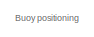
[diagram: root canvas - part 1/7, top left region]
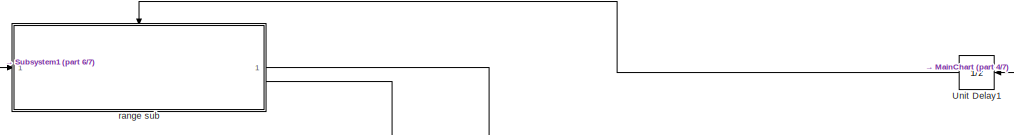
[diagram: root canvas - part 2/7, top left region]
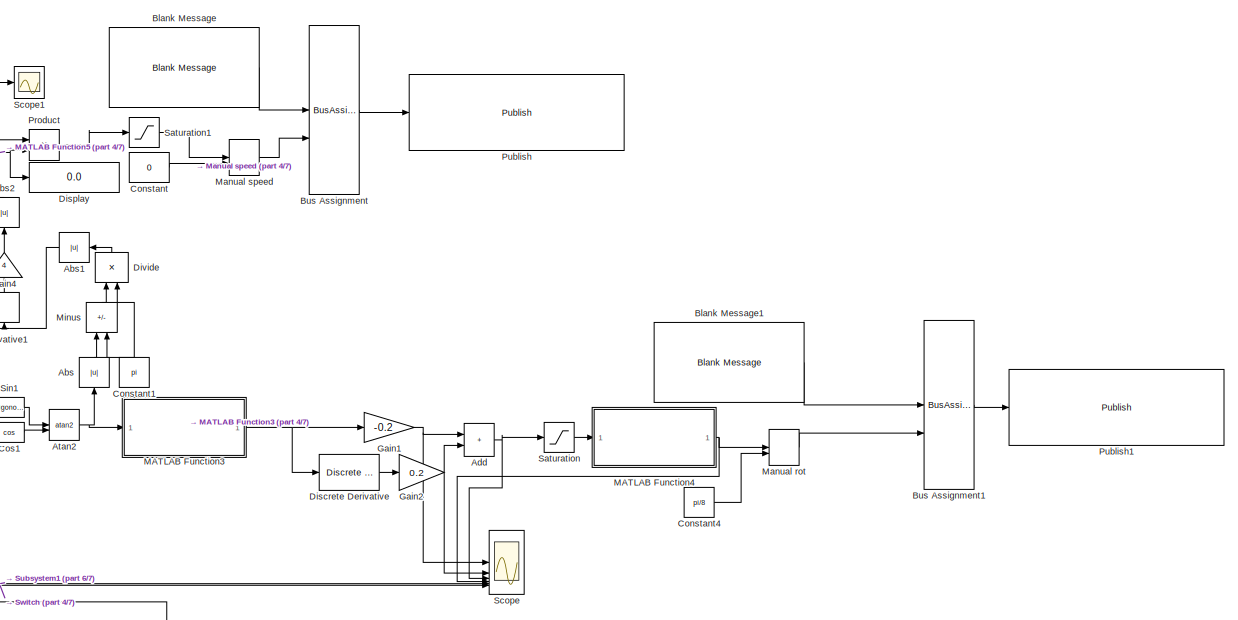
[diagram: root canvas - part 3/7, middle right region]
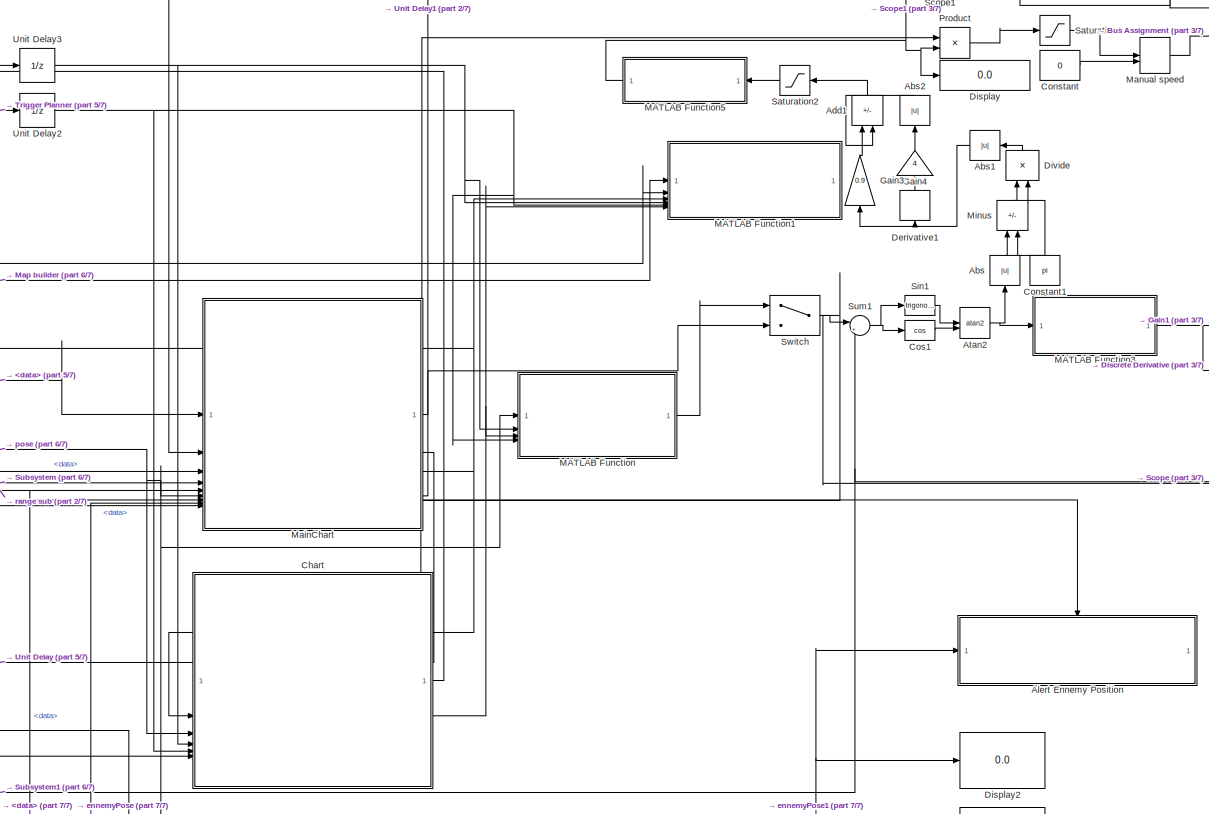
[diagram: root canvas - part 4/7, central region]
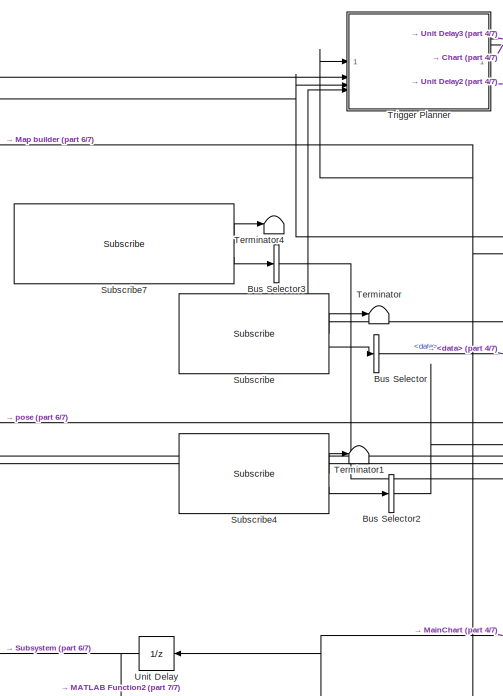
[diagram: root canvas - part 5/7, central region]
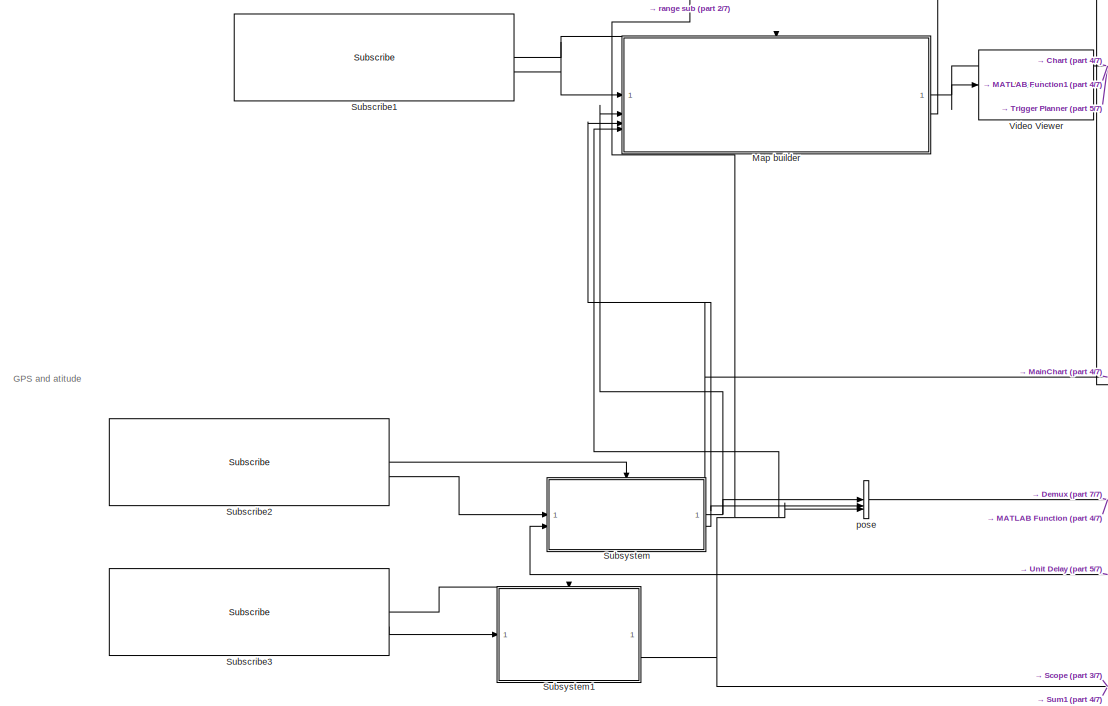
[diagram: root canvas - part 6/7, middle left region]
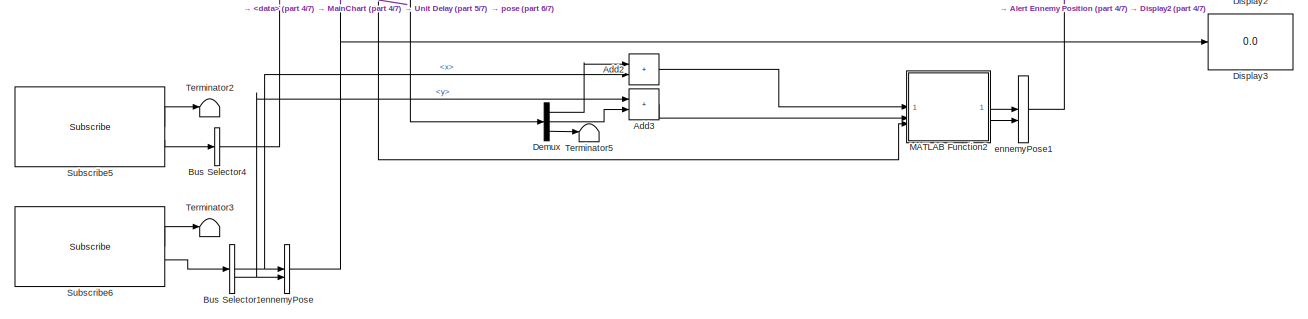
[diagram: root canvas - part 7/7, bottom center region]
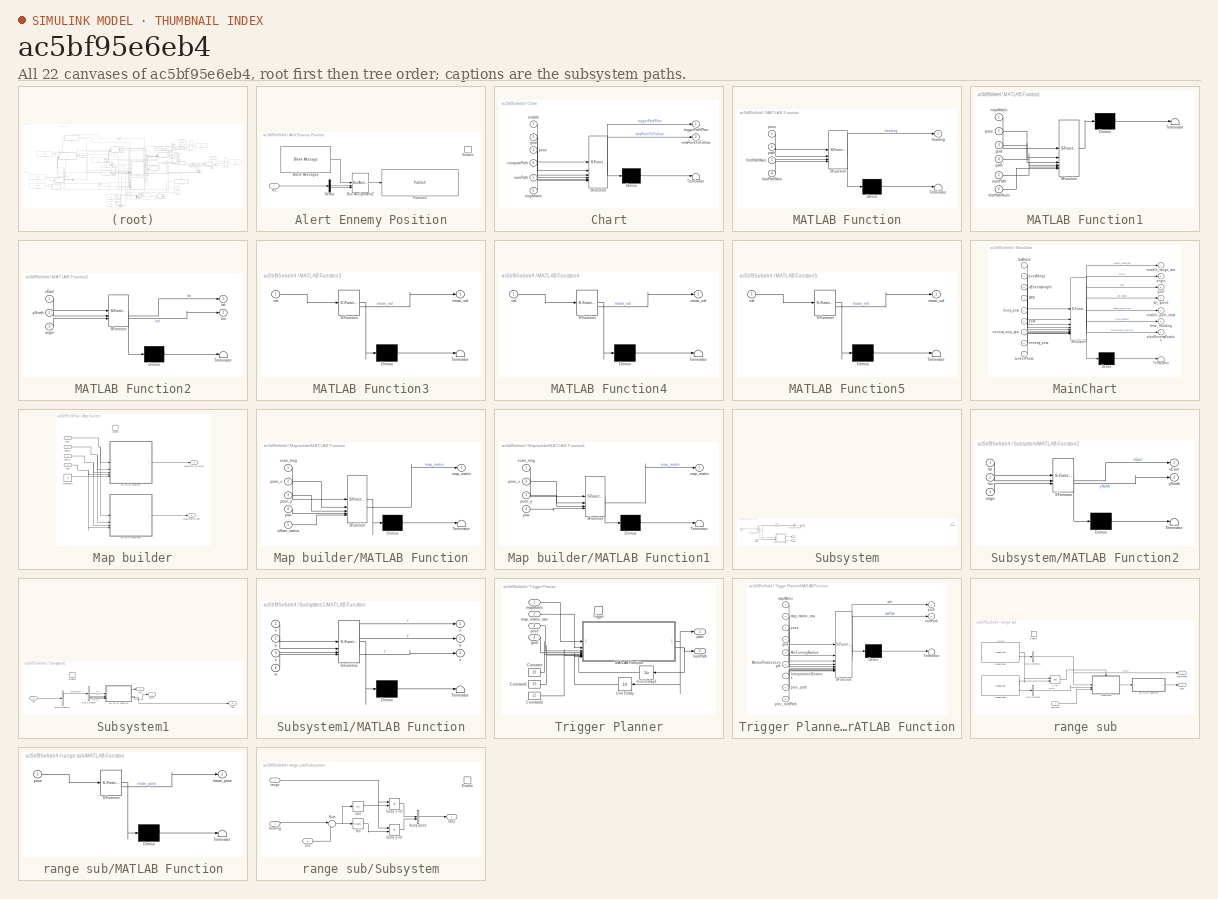
[diagram: thumbnail index - all 22 canvases of the model, root first then tree order]
MODEL slx_ac5bf95e6eb4
KIND model
CONFIG AbsTol = auto
CONFIG EnableMultiTasking = off
CONFIG FixedStep = auto
CONFIG MaxStep = auto
CONFIG MinStep = auto
CONFIG RelTol = 1e-3
CONFIG SampleTimeConstraint = Unconstrained
CONFIG SolverName = FixedStepAuto
CONFIG StartTime = 0.0
CONFIG StopTime = Inf
WORKSPACE source: mxarray member
WORKSPACE SL_Bus_ROSEnable64bitIntegers = 1
WORKSPACE SL_ROS_VariableLengthArrays_MaxSizes: object (value not decoded)
BLOCK [Abs] Abs
  NameLocation = right
  SaturateOnIntegerOverflow = off
BLOCK [Abs] Abs1
  NameLocation = top
  SaturateOnIntegerOverflow = off
BLOCK [Abs] Abs2
  NameLocation = right
  SaturateOnIntegerOverflow = off
BLOCK [Sum] Add
  IconShape = rectangular
BLOCK [Sum] Add1
  IconShape = rectangular
  Inputs = +-
  NameLocation = right
BLOCK [Sum] Add2
  IconShape = rectangular
BLOCK [Sum] Add3
  IconShape = rectangular
BLOCK [SubSystem] Alert Ennemy Position
BLOCK [Reference] Alert Ennemy Position/Blank Message2  REF=ros2lib/Blank Message  (lib defined in slx_3c1549211f48)
  SourceBlock = ros2lib/Blank Message
  SourceType = ROS2 Blank Message
BLOCK [BusAssignment] Alert Ennemy Position/Bus Assignment2
  AssignedSignals = pose.position.x,pose.position.y
BLOCK [Demux] Alert Ennemy Position/Demux
  Outputs = 2
BLOCK [EnablePort] Alert Ennemy Position/Enable
BLOCK [Inport] Alert Ennemy Position/In1
BLOCK [Reference] Alert Ennemy Position/Publish2  REF=ros2lib/Publish  (lib defined in slx_3c1549211f48)
  SourceBlock = ros2lib/Publish
  SourceType = ROS2 Publish
BLOCK [Trigonometry] Atan2
  Operator = atan2
BLOCK [Reference] Blank Message  REF=ros2lib/Blank Message  (lib defined in slx_3c1549211f48)
  SourceBlock = ros2lib/Blank Message
  SourceType = ROS2 Blank Message
BLOCK [Reference] Blank Message1  REF=ros2lib/Blank Message  (lib defined in slx_3c1549211f48)
  SourceBlock = ros2lib/Blank Message
  SourceType = ROS2 Blank Message
BLOCK [BusAssignment] Bus Assignment
  AssignedSignals = data
BLOCK [BusAssignment] Bus Assignment1
  AssignedSignals = data
BLOCK [BusSelector] Bus Selector
  OutputSignals = data
BLOCK [BusSelector] Bus Selector1
  OutputSignals = pose.position.x,pose.position.y
BLOCK [BusSelector] Bus Selector2
  OutputSignals = data
BLOCK [BusSelector] Bus Selector3
  OutputSignals = data
BLOCK [BusSelector] Bus Selector4
  OutputSignals = data
BLOCK [SubSystem] Chart
  ErrorFcn = Stateflow.Translate.translate
  PermitHierarchicalResolution = ExplicitOnly
  PortSchema = {"entries":[{"content":{"sides":[{"content":{"connectorIds":["In2","In3","In4","In5","In6"]},"type":"ConnectorPlacement.EquallySpacedRectSide","uuid":"f9d23542-f88c-4b93-885e-55d9e7a867a5"},{"content":{"connectorIds":["Out1","Out2"],"side":"RIGHT"},"type":"ConnectorPlacement.EquallySpacedRectSide","uuid":"ec7f353a-44e5-4b1c-b599-993baee30662"},{"content":{"connectorIds":["In1"],"side":"TOP"},"type...<+276ch>
  SFBlockType = Chart
  TreatAsAtomicUnit = on
BLOCK [Demux] Chart/ Demux 
  Outputs = 1
BLOCK [S-Function] Chart/ SFunction 
  EnableBusSupport = on
  FunctionName = sf_sfun
  PortCounts = [6 3]
  SFcnIsStateOwnerBlock = off
  SFunctionDeploymentMode = off
  Tag = Stateflow S-Function 12
BLOCK [Terminator] Chart/ Terminator 
BLOCK [Inport] Chart/computePath
  Port = 4
BLOCK [Inport] Chart/enable
BLOCK [Inport] Chart/goal
  Port = 2
BLOCK [Inport] Chart/mapMatrix
  Port = 6
BLOCK [Outport] Chart/newPointToFollow
  Port = 2
BLOCK [Inport] Chart/numPath
  Port = 5
BLOCK [Inport] Chart/pose
  Port = 3
BLOCK [Outport] Chart/triggerPathPlan
BLOCK [Constant] Constant
  Value = 0
BLOCK [Constant] Constant1
  NameLocation = right
  Value = pi
BLOCK [Constant] Constant4
  Value = pi/8
BLOCK [Trigonometry] Cos1
  Operator = cos
BLOCK [Demux] Demux
  Outputs = 3
BLOCK [Derivative] Derivative1
  NameLocation = right
BLOCK [Reference] Discrete Derivative  REF=simulink/Discrete/Discrete Derivative
  SourceBlock = simulink/Discrete/Discrete Derivative
  SourceType = Discrete Derivative
BLOCK [Display] Display
  Decimation = 1
BLOCK [Display] Display2
  Decimation = 1
BLOCK [Display] Display3
  Decimation = 1
BLOCK [Product] Divide
  Inputs = */
  NameLocation = right
  RndMeth = Zero
  SaturateOnIntegerOverflow = on
BLOCK [Gain] Gain1
  Gain = -0.2
BLOCK [Gain] Gain2
  Gain = 0.2
BLOCK [Gain] Gain3
  Gain = 0.9
  NameLocation = right
BLOCK [Gain] Gain4
  Gain = 4
  NameLocation = right
BLOCK [SubSystem] MATLAB Function
  ErrorFcn = Stateflow.Translate.translate
  PermitHierarchicalResolution = ExplicitOnly
  SFBlockType = MATLAB Function
  TreatAsAtomicUnit = on
BLOCK [Demux] MATLAB Function/ Demux 
  Outputs = 1
BLOCK [S-Function] MATLAB Function/ SFunction 
  EnableBusSupport = on
  FunctionName = sf_sfun
  PortCounts = [4 2]
  SFcnIsStateOwnerBlock = off
  SFunctionDeploymentMode = off
  Tag = Stateflow S-Function 9
BLOCK [Terminator] MATLAB Function/ Terminator 
BLOCK [Inport] MATLAB Function/firstPathNum
  Port = 3
BLOCK [Outport] MATLAB Function/heading
BLOCK [Inport] MATLAB Function/lastPathNum
  Port = 4
BLOCK [Inport] MATLAB Function/path
  Port = 2
BLOCK [Inport] MATLAB Function/pose
BLOCK [SubSystem] MATLAB Function1
  Commented = on
  ErrorFcn = Stateflow.Translate.translate
  PermitHierarchicalResolution = ExplicitOnly
  SFBlockType = MATLAB Function
  TreatAsAtomicUnit = on
BLOCK [Demux] MATLAB Function1/ Demux 
  Outputs = 1
BLOCK [S-Function] MATLAB Function1/ SFunction 
  EnableBusSupport = on
  FunctionName = sf_sfun
  PortCounts = [6 1]
  SFcnIsStateOwnerBlock = off
  SFunctionDeploymentMode = off
  Tag = Stateflow S-Function 7
BLOCK [Terminator] MATLAB Function1/ Terminator 
BLOCK [Inport] MATLAB Function1/firstPathNum
  Port = 6
BLOCK [Inport] MATLAB Function1/goal
  Port = 3
BLOCK [Inport] MATLAB Function1/mapMatrix
BLOCK [Inport] MATLAB Function1/numPath
  Port = 5
BLOCK [Inport] MATLAB Function1/path
  Port = 4
BLOCK [Inport] MATLAB Function1/pose
  Port = 2
BLOCK [SubSystem] MATLAB Function2
  ErrorFcn = Stateflow.Translate.translate
  PermitHierarchicalResolution = ExplicitOnly
  SFBlockType = MATLAB Function
  TreatAsAtomicUnit = on
BLOCK [Demux] MATLAB Function2/ Demux 
  Outputs = 1
BLOCK [S-Function] MATLAB Function2/ SFunction 
  EnableBusSupport = on
  FunctionName = sf_sfun
  PortCounts = [3 3]
  SFcnIsStateOwnerBlock = off
  SFunctionDeploymentMode = off
  Tag = Stateflow S-Function 4
BLOCK [Terminator] MATLAB Function2/ Terminator 
BLOCK [Outport] MATLAB Function2/lat
BLOCK [Outport] MATLAB Function2/lon
  Port = 2
BLOCK [Inport] MATLAB Function2/origin
  Port = 3
BLOCK [Inport] MATLAB Function2/xEast
BLOCK [Inport] MATLAB Function2/yNorth
  Port = 2
BLOCK [SubSystem] MATLAB Function3
  ErrorFcn = Stateflow.Translate.translate
  PermitHierarchicalResolution = ExplicitOnly
  SFBlockType = MATLAB Function
  TreatAsAtomicUnit = on
BLOCK [Demux] MATLAB Function3/ Demux 
  Outputs = 1
BLOCK [S-Function] MATLAB Function3/ SFunction 
  EnableBusSupport = on
  FunctionName = sf_sfun
  PortCounts = [1 2]
  SFcnIsStateOwnerBlock = off
  SFunctionDeploymentMode = off
  Tag = Stateflow S-Function 5
BLOCK [Terminator] MATLAB Function3/ Terminator 
BLOCK [Outport] MATLAB Function3/mean_val
BLOCK [Inport] MATLAB Function3/val
BLOCK [SubSystem] MATLAB Function4
  ErrorFcn = Stateflow.Translate.translate
  PermitHierarchicalResolution = ExplicitOnly
  SFBlockType = MATLAB Function
  TreatAsAtomicUnit = on
BLOCK [Demux] MATLAB Function4/ Demux 
  Outputs = 1
BLOCK [S-Function] MATLAB Function4/ SFunction 
  EnableBusSupport = on
  FunctionName = sf_sfun
  PortCounts = [1 2]
  SFcnIsStateOwnerBlock = off
  SFunctionDeploymentMode = off
  Tag = Stateflow S-Function 10
BLOCK [Terminator] MATLAB Function4/ Terminator 
BLOCK [Outport] MATLAB Function4/mean_val
BLOCK [Inport] MATLAB Function4/val
BLOCK [SubSystem] MATLAB Function5
  ErrorFcn = Stateflow.Translate.translate
  NameLocation = top
  PermitHierarchicalResolution = ExplicitOnly
  SFBlockType = MATLAB Function
  TreatAsAtomicUnit = on
BLOCK [Demux] MATLAB Function5/ Demux 
  Outputs = 1
BLOCK [S-Function] MATLAB Function5/ SFunction 
  EnableBusSupport = on
  FunctionName = sf_sfun
  PortCounts = [1 2]
  SFcnIsStateOwnerBlock = off
  SFunctionDeploymentMode = off
  Tag = Stateflow S-Function 13
BLOCK [Terminator] MATLAB Function5/ Terminator 
BLOCK [Outport] MATLAB Function5/mean_val
BLOCK [Inport] MATLAB Function5/val
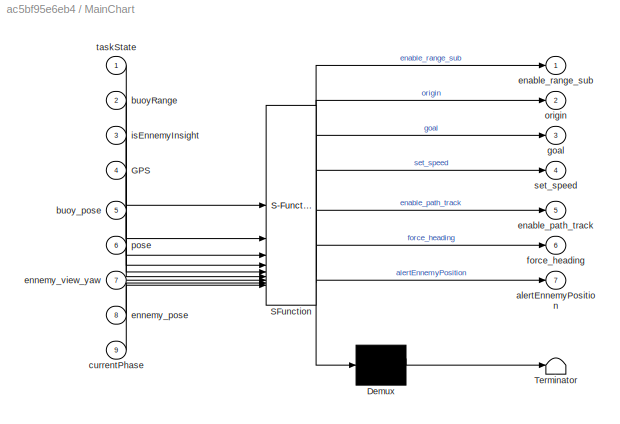
BLOCK [SubSystem] MainChart
  ErrorFcn = Stateflow.Translate.translate
  PermitHierarchicalResolution = ExplicitOnly
  PortSchema = {"entries":[{"content":{"sides":[{"content":{"connectorIds":["In9","In1","In2","In3","In4","In5","In6","In7","In8"]},"type":"ConnectorPlacement.EquallySpacedRectSide","uuid":"baf46242-21ef-496b-8046-9b9a77bd2dcf"},{"content":{"connectorIds":["Out1","Out2","Out3","Out4","Out6","Out7"],"side":"RIGHT"},"type":"ConnectorPlacement.EquallySpacedRectSide","uuid":"0a7db7ae-9b8c-430e-84d2-7611729502e6"},{"...<+455ch>
  SFBlockType = Chart
  TreatAsAtomicUnit = on
BLOCK [Demux] MainChart/ Demux 
  Outputs = 1
BLOCK [S-Function] MainChart/ SFunction 
  EnableBusSupport = on
  FunctionName = sf_sfun
  PortCounts = [9 8]
  SFcnIsStateOwnerBlock = off
  SFunctionDeploymentMode = off
  Tag = Stateflow S-Function 3
BLOCK [Terminator] MainChart/ Terminator 
BLOCK [Inport] MainChart/GPS
  Port = 4
BLOCK [Outport] MainChart/alertEnnemyPosition
  Port = 7
BLOCK [Inport] MainChart/buoyRange
  Port = 2
BLOCK [Inport] MainChart/buoy_pose
  Port = 5
BLOCK [Inport] MainChart/currentPhase
  Port = 9
BLOCK [Outport] MainChart/enable_path_track
  Port = 5
BLOCK [Outport] MainChart/enable_range_sub
BLOCK [Inport] MainChart/ennemy_pose
  Port = 8
BLOCK [Inport] MainChart/ennemy_view_yaw
  Port = 7
BLOCK [Outport] MainChart/force_heading
  Port = 6
BLOCK [Outport] MainChart/goal
  Port = 3
BLOCK [Inport] MainChart/isEnnemyInsight
  Port = 3
BLOCK [Outport] MainChart/origin
  Port = 2
BLOCK [Inport] MainChart/pose
  Port = 6
BLOCK [Outport] MainChart/set_speed
  Port = 4
BLOCK [Inport] MainChart/taskState
BLOCK [ManualSwitch] Manual rot
BLOCK [ManualSwitch] Manual speed
BLOCK [SubSystem] Map builder
BLOCK [Constant] Map builder/Constant3
  Value = 20
BLOCK [EnablePort] Map builder/Enable
BLOCK [SubSystem] Map builder/MATLAB Function
  ErrorFcn = Stateflow.Translate.translate
  PermitHierarchicalResolution = ExplicitOnly
  SFBlockType = MATLAB Function
  TreatAsAtomicUnit = on
BLOCK [Demux] Map builder/MATLAB Function/ Demux 
  Outputs = 1
BLOCK [S-Function] Map builder/MATLAB Function/ SFunction 
  EnableBusSupport = on
  FunctionName = sf_sfun
  PortCounts = [5 2]
  SFcnIsStateOwnerBlock = off
  SFunctionDeploymentMode = off
  Tag = Stateflow S-Function 1
BLOCK [Terminator] Map builder/MATLAB Function/ Terminator 
BLOCK [Inport] Map builder/MATLAB Function/inflate_radius
  Port = 5
BLOCK [Outport] Map builder/MATLAB Function/map_matrix
BLOCK [Inport] Map builder/MATLAB Function/pose_x
  Port = 2
BLOCK [Inport] Map builder/MATLAB Function/pose_y
  Port = 3
BLOCK [Inport] Map builder/MATLAB Function/scan_msg
BLOCK [Inport] Map builder/MATLAB Function/yaw
  Port = 4
BLOCK [SubSystem] Map builder/MATLAB Function1
  ErrorFcn = Stateflow.Translate.translate
  PermitHierarchicalResolution = ExplicitOnly
  SFBlockType = MATLAB Function
  TreatAsAtomicUnit = on
BLOCK [Demux] Map builder/MATLAB Function1/ Demux 
  Outputs = 1
BLOCK [S-Function] Map builder/MATLAB Function1/ SFunction 
  EnableBusSupport = on
  FunctionName = sf_sfun
  PortCounts = [4 2]
  SFcnIsStateOwnerBlock = off
  SFunctionDeploymentMode = off
  Tag = Stateflow S-Function 14
BLOCK [Terminator] Map builder/MATLAB Function1/ Terminator 
BLOCK [Outport] Map builder/MATLAB Function1/map_matrix
BLOCK [Inport] Map builder/MATLAB Function1/pose_x
  Port = 2
BLOCK [Inport] Map builder/MATLAB Function1/pose_y
  Port = 3
BLOCK [Inport] Map builder/MATLAB Function1/scan_msg
BLOCK [Inport] Map builder/MATLAB Function1/yaw
  Port = 4
BLOCK [Inport] Map builder/Msg
BLOCK [Outport] Map builder/map_matrix_inflate
BLOCK [Outport] Map builder/map_matrix_raw
  Port = 2
BLOCK [Inport] Map builder/pose_x
  Port = 2
BLOCK [Inport] Map builder/pose_y
  Port = 3
BLOCK [Inport] Map builder/yaw
  Port = 4
BLOCK [Sum] Minus
  IconShape = rectangular
  Inputs = +-
  NameLocation = right
BLOCK [Product] Product
BLOCK [Reference] Publish  REF=ros2lib/Publish  (lib defined in slx_3c1549211f48)
  SourceBlock = ros2lib/Publish
  SourceType = ROS2 Publish
BLOCK [Reference] Publish1  REF=ros2lib/Publish  (lib defined in slx_3c1549211f48)
  SourceBlock = ros2lib/Publish
  SourceType = ROS2 Publish
BLOCK [Saturate] Saturation
  LowerLimit = -pi/4
  UpperLimit = pi/4
BLOCK [Saturate] Saturation1
  LowerLimit = -12000
  UpperLimit = 12000
BLOCK [Saturate] Saturation2
  LowerLimit = 0.1
  UpperLimit = 1
BLOCK [Scope] Scope
  Floating = off
  NumInputPorts = 6
  ScopeSpecificationString = Simulink.scopes.TimeScopeBlockCfg('CurrentConfiguration', extmgr.ConfigurationSet(extmgr.Configuration('Core','General UI',true),extmgr.Configuration('Core','Source UI',true),extmgr.Configuration('Sources','WiredSimulink',true),extmgr.Configuration('Visuals','Time Domain',true,'SerializedDisplays',{struct('MinYLimReal','-3.50691','MaxYLimReal','0.38966','YLabelReal','','MinYLimMag','0.00000','MaxY...<+1591ch>
BLOCK [Scope] Scope1
  Floating = off
  NumInputPorts = 1
  ScopeSpecificationString = Simulink.scopes.TimeScopeBlockCfg('CurrentConfiguration', extmgr.ConfigurationSet(extmgr.Configuration('Core','General UI',true),extmgr.Configuration('Core','Source UI',true),extmgr.Configuration('Sources','WiredSimulink',true,'DataLoggingVariableName','ScopeData1'),extmgr.Configuration('Visuals','Time Domain',true,'SerializedDisplays',{struct('MinYLimReal','0.39375','MaxYLimReal','0.95625','YLabe...<+1427ch>
BLOCK [Trigonometry] Sin1
BLOCK [Reference] Subscribe  REF=ros2lib/Subscribe  (lib defined in slx_3c1549211f48)
  SourceBlock = ros2lib/Subscribe
  SourceType = ROS2 Subscribe
BLOCK [Reference] Subscribe1  REF=ros2lib/Subscribe  (lib defined in slx_3c1549211f48)
  SourceBlock = ros2lib/Subscribe
  SourceType = ROS2 Subscribe
BLOCK [Reference] Subscribe2  REF=ros2lib/Subscribe  (lib defined in slx_3c1549211f48)
  SourceBlock = ros2lib/Subscribe
  SourceType = ROS2 Subscribe
BLOCK [Reference] Subscribe3  REF=ros2lib/Subscribe  (lib defined in slx_3c1549211f48)
  SourceBlock = ros2lib/Subscribe
  SourceType = ROS2 Subscribe
BLOCK [Reference] Subscribe4  REF=ros2lib/Subscribe  (lib defined in slx_3c1549211f48)
  SourceBlock = ros2lib/Subscribe
  SourceType = ROS2 Subscribe
BLOCK [Reference] Subscribe5  REF=ros2lib/Subscribe  (lib defined in slx_3c1549211f48)
  SourceBlock = ros2lib/Subscribe
  SourceType = ROS2 Subscribe
BLOCK [Reference] Subscribe6  REF=ros2lib/Subscribe  (lib defined in slx_3c1549211f48)
  SourceBlock = ros2lib/Subscribe
  SourceType = ROS2 Subscribe
BLOCK [Reference] Subscribe7  REF=ros2lib/Subscribe  (lib defined in slx_3c1549211f48)
  SourceBlock = ros2lib/Subscribe
  SourceType = ROS2 Subscribe
BLOCK [SubSystem] Subsystem
BLOCK [BusSelector] Subsystem/Bus Selector
  OutputSignals = latitude,longitude
BLOCK [EnablePort] Subsystem/Enable
BLOCK [Inport] Subsystem/In1
BLOCK [SubSystem] Subsystem/MATLAB Function2
  ErrorFcn = Stateflow.Translate.translate
  PermitHierarchicalResolution = ExplicitOnly
  SFBlockType = MATLAB Function
  TreatAsAtomicUnit = on
BLOCK [Demux] Subsystem/MATLAB Function2/ Demux 
  Outputs = 1
BLOCK [S-Function] Subsystem/MATLAB Function2/ SFunction 
  EnableBusSupport = on
  FunctionName = sf_sfun
  PortCounts = [3 3]
  SFcnIsStateOwnerBlock = off
  SFunctionDeploymentMode = off
  Tag = Stateflow S-Function 8
BLOCK [Terminator] Subsystem/MATLAB Function2/ Terminator 
BLOCK [Inport] Subsystem/MATLAB Function2/lat
BLOCK [Inport] Subsystem/MATLAB Function2/lon
  Port = 2
BLOCK [Inport] Subsystem/MATLAB Function2/origin
  Port = 3
BLOCK [Outport] Subsystem/MATLAB Function2/xEast
BLOCK [Outport] Subsystem/MATLAB Function2/yNorth
  Port = 2
BLOCK [Outport] Subsystem/RawGPS
  Port = 3
BLOCK [Concatenate] Subsystem/Vector Concatenate
BLOCK [Inport] Subsystem/origin
  Port = 2
BLOCK [Outport] Subsystem/xEast
BLOCK [Outport] Subsystem/yNorth
  Port = 2
BLOCK [SubSystem] Subsystem1
BLOCK [BusSelector] Subsystem1/Bus Selector
  OutputSignals = x,y,z,w
BLOCK [BusSelector] Subsystem1/Bus Selector1
  OutputSignals = orientation,angular_velocity
BLOCK [EnablePort] Subsystem1/Enable
BLOCK [Inport] Subsystem1/In1
BLOCK [SubSystem] Subsystem1/MATLAB Function
  ErrorFcn = Stateflow.Translate.translate
  PermitHierarchicalResolution = ExplicitOnly
  SFBlockType = MATLAB Function
  TreatAsAtomicUnit = on
BLOCK [Demux] Subsystem1/MATLAB Function/ Demux 
  Outputs = 1
BLOCK [S-Function] Subsystem1/MATLAB Function/ SFunction 
  EnableBusSupport = on
  FunctionName = sf_sfun
  PortCounts = [4 4]
  SFcnIsStateOwnerBlock = off
  SFunctionDeploymentMode = off
  Tag = Stateflow S-Function 2
BLOCK [Terminator] Subsystem1/MATLAB Function/ Terminator 
BLOCK [Inport] Subsystem1/MATLAB Function/w
  Port = 4
BLOCK [Outport] Subsystem1/MATLAB Function/x
BLOCK [Inport] Subsystem1/MATLAB Function/x 
BLOCK [Outport] Subsystem1/MATLAB Function/y
  Port = 2
BLOCK [Inport] Subsystem1/MATLAB Function/y 
  Port = 2
BLOCK [Outport] Subsystem1/MATLAB Function/z
  Port = 3
BLOCK [Inport] Subsystem1/MATLAB Function/z 
  Port = 3
BLOCK [Outport] Subsystem1/pitch
  Port = 2
BLOCK [Outport] Subsystem1/roll
BLOCK [Outport] Subsystem1/yaw
  Port = 3
BLOCK [Sum] Sum1
  Inputs = |+-
BLOCK [Switch] Switch
  Criteria = u2 > Threshold
  InputSameDT = off
  SaturateOnIntegerOverflow = off
BLOCK [Terminator] Terminator
BLOCK [Terminator] Terminator1
BLOCK [Terminator] Terminator2
BLOCK [Terminator] Terminator3
BLOCK [Terminator] Terminator4
BLOCK [Terminator] Terminator5
BLOCK [SubSystem] Trigger Planner
BLOCK [Constant] Trigger Planner/Constant
  Value = 20
BLOCK [Constant] Trigger Planner/Constant1
  Value = 10
BLOCK [Constant] Trigger Planner/Constant2
  Value = 15
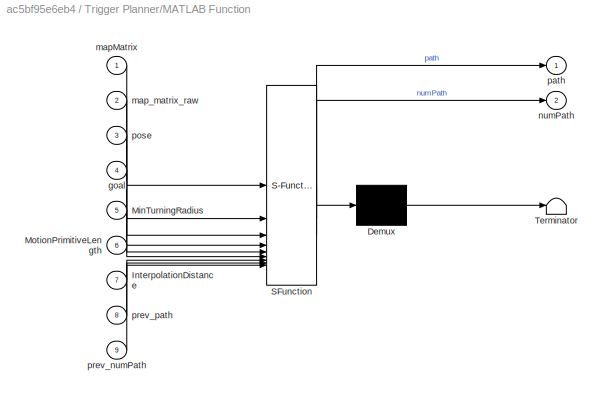
BLOCK [SubSystem] Trigger Planner/MATLAB Function
  ErrorFcn = Stateflow.Translate.translate
  PermitHierarchicalResolution = ExplicitOnly
  SFBlockType = MATLAB Function
  TreatAsAtomicUnit = on
BLOCK [Demux] Trigger Planner/MATLAB Function/ Demux 
  Outputs = 1
BLOCK [S-Function] Trigger Planner/MATLAB Function/ SFunction 
  EnableBusSupport = on
  FunctionName = sf_sfun
  PortCounts = [9 3]
  SFcnIsStateOwnerBlock = off
  SFunctionDeploymentMode = off
  Tag = Stateflow S-Function 6
BLOCK [Terminator] Trigger Planner/MATLAB Function/ Terminator 
BLOCK [Inport] Trigger Planner/MATLAB Function/InterpolationDistance
  Port = 7
BLOCK [Inport] Trigger Planner/MATLAB Function/MinTurningRadius
  Port = 5
BLOCK [Inport] Trigger Planner/MATLAB Function/MotionPrimitiveLength
  Port = 6
BLOCK [Inport] Trigger Planner/MATLAB Function/goal
  Port = 4
BLOCK [Inport] Trigger Planner/MATLAB Function/mapMatrix
BLOCK [Inport] Trigger Planner/MATLAB Function/map_matrix_raw
  Port = 2
BLOCK [Outport] Trigger Planner/MATLAB Function/numPath
  Port = 2
BLOCK [Outport] Trigger Planner/MATLAB Function/path
BLOCK [Inport] Trigger Planner/MATLAB Function/pose
  Port = 3
BLOCK [Inport] Trigger Planner/MATLAB Function/prev_numPath
  Port = 9
BLOCK [Inport] Trigger Planner/MATLAB Function/prev_path
  Port = 8
BLOCK [TriggerPort] Trigger Planner/Trigger
  PortDimensions = 1
  StatesWhenEnabling = held
  VariantControl = (inherit)
BLOCK [UnitDelay] Trigger Planner/Unit Delay
  HasFrameUpgradeWarning = on
  InitialCondition = zeros(100,3)
  SampleTime = -1
BLOCK [UnitDelay] Trigger Planner/Unit Delay1
  HasFrameUpgradeWarning = on
  InitialCondition = 1
  SampleTime = -1
BLOCK [Inport] Trigger Planner/goal
  Port = 4
BLOCK [Inport] Trigger Planner/mapMatrix
BLOCK [Inport] Trigger Planner/map_matrix_raw
  Port = 2
BLOCK [Outport] Trigger Planner/numPath
  Port = 2
BLOCK [Outport] Trigger Planner/path
BLOCK [Inport] Trigger Planner/pose
  Port = 3
BLOCK [UnitDelay] Unit Delay
  HasFrameUpgradeWarning = on
  InitialCondition = [0 0]
  SampleTime = -1
BLOCK [UnitDelay] Unit Delay1
  HasFrameUpgradeWarning = on
  SampleTime = -1
BLOCK [UnitDelay] Unit Delay2
  HasFrameUpgradeWarning = on
  SampleTime = -1
BLOCK [UnitDelay] Unit Delay3
  HasFrameUpgradeWarning = on
  InitialCondition = zeros(100,3)
  SampleTime = -1
BLOCK [VideoViewer] Video Viewer
  Commented = on
  FigPos = [317 969 1054 739]
  ScopeSpecificationString = vipscopes.VideoViewerScopeCfg('CurrentConfiguration', extmgr.ConfigurationSet(extmgr.Configuration('Core','General UI',true),extmgr.Configuration('Core','Source UI',true),extmgr.Configuration('Sources','WiredSimulink',true),extmgr.Configuration('Visuals','Video',true),extmgr.Configuration('Tools','Image Navigation Tools',true),extmgr.Configuration('Tools','Image Tool',true),extmgr.Configuration('T...<+76ch>
BLOCK [Concatenate] ennemyPose
BLOCK [Concatenate] ennemyPose1
BLOCK [Concatenate] pose
  NumInputs = 3
BLOCK [SubSystem] range sub
BLOCK [Logic] range sub/AND
  AllPortsSameDT = off
  IconShape = distinctive
  OutDataTypeStr = boolean
BLOCK [BusSelector] range sub/Bus Selector
  OutputSignals = data
BLOCK [BusSelector] range sub/Bus Selector1
  OutputSignals = data
BLOCK [EnablePort] range sub/Enable
BLOCK [SubSystem] range sub/MATLAB Function
  ErrorFcn = Stateflow.Translate.translate
  PermitHierarchicalResolution = ExplicitOnly
  SFBlockType = MATLAB Function
  TreatAsAtomicUnit = on
BLOCK [Demux] range sub/MATLAB Function/ Demux 
  Outputs = 1
BLOCK [S-Function] range sub/MATLAB Function/ SFunction 
  EnableBusSupport = on
  FunctionName = sf_sfun
  PortCounts = [1 2]
  SFcnIsStateOwnerBlock = off
  SFunctionDeploymentMode = off
  Tag = Stateflow S-Function 11
BLOCK [Terminator] range sub/MATLAB Function/ Terminator 
BLOCK [Outport] range sub/MATLAB Function/mean_pose
BLOCK [Inport] range sub/MATLAB Function/pose
BLOCK [Reference] range sub/Subscribe1  REF=ros2lib/Subscribe  (lib defined in slx_3c1549211f48)
  SourceBlock = ros2lib/Subscribe
  SourceType = ROS2 Subscribe
BLOCK [Reference] range sub/Subscribe2  REF=ros2lib/Subscribe  (lib defined in slx_3c1549211f48)
  SourceBlock = ros2lib/Subscribe
  SourceType = ROS2 Subscribe
BLOCK [SubSystem] range sub/Subsystem
BLOCK [Trigonometry] range sub/Subsystem/Cos
  Operator = cos
BLOCK [EnablePort] range sub/Subsystem/Enable
BLOCK [Inport] range sub/Subsystem/In3
  Port = 3
BLOCK [Outport] range sub/Subsystem/Out1
BLOCK [Trigonometry] range sub/Subsystem/Sin
BLOCK [Sum] range sub/Subsystem/Sum
  Inputs = |++
BLOCK [Inport] range sub/Subsystem/bearing
  Port = 2
BLOCK [Concatenate] range sub/Subsystem/buoy pose
BLOCK [Product] range sub/Subsystem/buoy x rel
  NameLocation = top
BLOCK [Product] range sub/Subsystem/buoy y rel
BLOCK [Inport] range sub/Subsystem/range
BLOCK [Inport] range sub/abs_yaw
BLOCK [Outport] range sub/buoyRange
BLOCK [Outport] range sub/pose
  Port = 2
ANNOTATION (root): Buoy positioning
ANNOTATION (root): GPS and atitude
ANNOTATION range sub: rosMsg
NET Abs1:1 -> Derivative1:1, Gain3:1
LINE Abs2:1 -> Add1:2
LINE Abs:1 -> Minus:1
LINE Add1:1 -> Saturation2:1
LINE Add2:1 -> MATLAB Function2:1
LINE Add3:1 -> MATLAB Function2:2
NET Add:1 -> Saturation:1, Scope:3
LINE Alert Ennemy Position/Blank Message2:1 -> Alert Ennemy Position/Bus Assignment2:1
LINE Alert Ennemy Position/Bus Assignment2:1 -> Alert Ennemy Position/Publish2:1
LINE Alert Ennemy Position/Demux:1 -> Alert Ennemy Position/Bus Assignment2:2
LINE Alert Ennemy Position/Demux:2 -> Alert Ennemy Position/Bus Assignment2:3
LINE Alert Ennemy Position/In1:1 -> Alert Ennemy Position/Demux:1
NET Atan2:1 -> Abs:1, MATLAB Function3:1
LINE Blank Message1:1 -> Bus Assignment1:1
LINE Blank Message:1 -> Bus Assignment:1
LINE Bus Assignment1:1 -> Publish1:1
LINE Bus Assignment:1 -> Publish:1
NET Bus Selector1:1 -> Add2:2, ennemyPose:1
NET Bus Selector1:2 -> Add3:1, ennemyPose:2
LINE Bus Selector2:1 -> MainChart:3
LINE Bus Selector3:1 -> MainChart:9
LINE Bus Selector4:1 -> MainChart:7
LINE Bus Selector:1 -> MainChart:1
LINE Chart:1 -> Trigger Planner:trigger
NET Chart:2 -> MATLAB Function1:6, MATLAB Function:3
NET Constant1:1 -> Divide:2, Minus:2
LINE Constant4:1 -> Manual rot:2
LINE Constant:1 -> Manual speed:2
LINE Cos1:1 -> Atan2:2
LINE Demux:1 -> Add2:1
LINE Demux:2 -> Add3:2
LINE Demux:3 -> Terminator5:1
LINE Derivative1:1 -> Gain4:1
LINE Discrete Derivative:1 -> Gain2:1
LINE Divide:1 -> Abs1:1
NET Gain1:1 -> Add:1, Scope:1
NET Gain2:1 -> Add:2, Scope:2
LINE Gain3:1 -> Add1:1
LINE Gain4:1 -> Abs2:1
LINE MATLAB Function2:1 -> ennemyPose1:1
LINE MATLAB Function2:2 -> ennemyPose1:2
NET MATLAB Function3:1 -> Discrete Derivative:1, Gain1:1
NET MATLAB Function4:1 -> Manual rot:1, Scope:4
NET MATLAB Function5:1 -> Display:1, Product:2, Scope1:1
LINE MATLAB Function:1 -> Switch:1
LINE MainChart:1 -> Unit Delay1:1
LINE MainChart:2 -> Unit Delay:1
NET MainChart:3 -> Chart:2, MATLAB Function1:3, Trigger Planner:4
LINE MainChart:4 -> Product:1
NET MainChart:5 -> Chart:1, Switch:2
LINE MainChart:6 -> Switch:3
LINE MainChart:7 -> Alert Ennemy Position:enable
LINE Manual rot:1 -> Bus Assignment1:2
LINE Manual speed:1 -> Bus Assignment:2
LINE Map builder/Constant3:1 -> Map builder/MATLAB Function:5
LINE Map builder/MATLAB Function1:1 -> Map builder/map_matrix_raw:1
LINE Map builder/MATLAB Function:1 -> Map builder/map_matrix_inflate:1
NET Map builder/Msg:1 -> Map builder/MATLAB Function1:1, Map builder/MATLAB Function:1
NET Map builder/pose_x:1 -> Map builder/MATLAB Function1:2, Map builder/MATLAB Function:2
NET Map builder/pose_y:1 -> Map builder/MATLAB Function1:3, Map builder/MATLAB Function:3
NET Map builder/yaw:1 -> Map builder/MATLAB Function1:4, Map builder/MATLAB Function:4
NET Map builder:1 -> Chart:6, MATLAB Function1:1, Trigger Planner:1, Video Viewer:1
LINE Map builder:2 -> Trigger Planner:2
LINE Minus:1 -> Divide:1
LINE Product:1 -> Saturation1:1
LINE Saturation1:1 -> Manual speed:1
LINE Saturation2:1 -> MATLAB Function5:1
LINE Saturation:1 -> MATLAB Function4:1
LINE Sin1:1 -> Atan2:1
LINE Subscribe1:1 -> Map builder:enable
LINE Subscribe1:2 -> Map builder:1
LINE Subscribe2:1 -> Subsystem:enable
LINE Subscribe2:2 -> Subsystem:1
LINE Subscribe3:1 -> Subsystem1:enable
LINE Subscribe3:2 -> Subsystem1:1
LINE Subscribe4:1 -> Terminator1:1
LINE Subscribe4:2 -> Bus Selector2:1
LINE Subscribe5:1 -> Terminator2:1
LINE Subscribe5:2 -> Bus Selector4:1
LINE Subscribe6:1 -> Terminator3:1
LINE Subscribe6:2 -> Bus Selector1:1
LINE Subscribe7:1 -> Terminator4:1
LINE Subscribe7:2 -> Bus Selector3:1
LINE Subscribe:1 -> Terminator:1
LINE Subscribe:2 -> Bus Selector:1
NET Subsystem/Bus Selector:1 -> Subsystem/MATLAB Function2:1, Subsystem/Vector Concatenate:1
NET Subsystem/Bus Selector:2 -> Subsystem/MATLAB Function2:2, Subsystem/Vector Concatenate:2
LINE Subsystem/In1:1 -> Subsystem/Bus Selector:1
LINE Subsystem/MATLAB Function2:1 -> Subsystem/xEast:1
LINE Subsystem/MATLAB Function2:2 -> Subsystem/yNorth:1
LINE Subsystem/Vector Concatenate:1 -> Subsystem/RawGPS:1
LINE Subsystem/origin:1 -> Subsystem/MATLAB Function2:3
LINE Subsystem1/Bus Selector1:1 -> Subsystem1/Bus Selector:1
LINE Subsystem1/Bus Selector:1 -> Subsystem1/MATLAB Function:1
LINE Subsystem1/Bus Selector:2 -> Subsystem1/MATLAB Function:2
LINE Subsystem1/Bus Selector:3 -> Subsystem1/MATLAB Function:3
LINE Subsystem1/Bus Selector:4 -> Subsystem1/MATLAB Function:4
LINE Subsystem1/In1:1 -> Subsystem1/Bus Selector1:1
LINE Subsystem1/MATLAB Function:1 -> Subsystem1/roll:1
LINE Subsystem1/MATLAB Function:2 -> Subsystem1/pitch:1
LINE Subsystem1/MATLAB Function:3 -> Subsystem1/yaw:1
NET Subsystem1:3 -> Map builder:4, Scope:5, Sum1:2, pose:3, range sub:1
NET Subsystem:1 -> Map builder:2, pose:1
NET Subsystem:2 -> Map builder:3, pose:2
LINE Subsystem:3 -> MainChart:4
NET Sum1:1 -> Cos1:1, Sin1:1
NET Switch:1 -> Scope:6, Sum1:1
LINE Trigger Planner/Constant1:1 -> Trigger Planner/MATLAB Function:6
LINE Trigger Planner/Constant2:1 -> Trigger Planner/MATLAB Function:7
LINE Trigger Planner/Constant:1 -> Trigger Planner/MATLAB Function:5
NET Trigger Planner/MATLAB Function:1 -> Trigger Planner/Unit Delay:1, Trigger Planner/path:1
NET Trigger Planner/MATLAB Function:2 -> Trigger Planner/Unit Delay1:1, Trigger Planner/numPath:1
LINE Trigger Planner/Unit Delay1:1 -> Trigger Planner/MATLAB Function:9
LINE Trigger Planner/Unit Delay:1 -> Trigger Planner/MATLAB Function:8
LINE Trigger Planner/goal:1 -> Trigger Planner/MATLAB Function:4
LINE Trigger Planner/mapMatrix:1 -> Trigger Planner/MATLAB Function:1
LINE Trigger Planner/map_matrix_raw:1 -> Trigger Planner/MATLAB Function:2
LINE Trigger Planner/pose:1 -> Trigger Planner/MATLAB Function:3
LINE Trigger Planner:1 -> Unit Delay3:1
LINE Trigger Planner:2 -> Unit Delay2:1
LINE Unit Delay1:1 -> range sub:enable
NET Unit Delay2:1 -> Chart:5, MATLAB Function1:5, MATLAB Function:4
NET Unit Delay3:1 -> Chart:4, MATLAB Function1:4, MATLAB Function:2
NET Unit Delay:1 -> MATLAB Function2:3, Subsystem:2
NET ennemyPose1:1 -> Alert Ennemy Position:1, Display2:1
NET ennemyPose:1 -> Display3:1, MainChart:8
NET pose:1 -> Chart:3, Demux:1, MATLAB Function1:2, MATLAB Function:1, MainChart:6, Trigger Planner:3
LINE range sub/AND:1 -> range sub/Subsystem:enable
NET range sub/Bus Selector1:1 -> range sub/Subsystem:1, range sub/buoyRange:1
LINE range sub/Bus Selector:1 -> range sub/Subsystem:2
LINE range sub/MATLAB Function:1 -> range sub/pose:1
LINE range sub/Subscribe1:1 -> range sub/AND:1
LINE range sub/Subscribe1:2 -> range sub/Bus Selector1:1
LINE range sub/Subscribe2:1 -> range sub/AND:2
LINE range sub/Subscribe2:2 -> range sub/Bus Selector:1
LINE range sub/Subsystem/Cos:1 -> range sub/Subsystem/buoy x rel:2
LINE range sub/Subsystem/In3:1 -> range sub/Subsystem/Sum:2
LINE range sub/Subsystem/Sin:1 -> range sub/Subsystem/buoy y rel:2
NET range sub/Subsystem/Sum:1 -> range sub/Subsystem/Cos:1, range sub/Subsystem/Sin:1
LINE range sub/Subsystem/bearing:1 -> range sub/Subsystem/Sum:1
LINE range sub/Subsystem/buoy pose:1 -> range sub/Subsystem/Out1:1
LINE range sub/Subsystem/buoy x rel:1 -> range sub/Subsystem/buoy pose:1
LINE range sub/Subsystem/buoy y rel:1 -> range sub/Subsystem/buoy pose:2
NET range sub/Subsystem/range:1 -> range sub/Subsystem/buoy x rel:1, range sub/Subsystem/buoy y rel:1
LINE range sub/Subsystem:1 -> range sub/MATLAB Function:1
LINE range sub/abs_yaw:1 -> range sub/Subsystem:3
LINE range sub:1 -> MainChart:2
LINE range sub:2 -> MainChart:5
note: NET lines group one-source signal fan-out (src -> all destinations, sorted); 1:1 wires keep LINE
CHART Map builder/MATLAB Function states=1 transitions=1
  STATE_LABEL 'eML_blk_kernel()'
  STATE_LABEL 'SCRIPT:\nfunction map_matrix= fcn(scan_msg, pose_x, pose_y, yaw,inflate_radius)\n    ranges = scan_msg.ranges;\n    ranges(ranges==inf) = NaN;\n    angles = transpose(linspace(scan_msg.angle_min, scan_msg.angle_max, length(ranges)));\n\n    map = binaryOccupancyMap(700, 700,1);\n    map.GridOriginInLocal = -[diff(map.XWorldLimits) diff(map.YWorldLimits)]/2;\n    insertRay(map, [pose_x pose_y yaw], ranges,...<+91ch>'
CHART Subsystem1/MATLAB Function states=1 transitions=1
  STATE_LABEL 'eML_blk_kernel()'
  STATE_LABEL 'SCRIPT:\nfunction [x, y, z]= quatToEuler(x, y, z, w)\n    eulZYX = quat2eul([w, x, y, z], "ZYX");\n    x = eulZYX(3);\n    y = eulZYX(2);\n    z = eulZYX(1);\nend'
CHART MainChart states=13 transitions=21
  STATE_LABEL 'Init\nentry:\ngoal = [0; 0];\nset_speed=0;\nenable_path_track = 0;\nforce_heading = pose(3);\nlistOfPoints = [[200;200],[200;-200],[0;200],[0;-200],[-200;200],[-200;-200]];\n'
  STATE_LABEL 'SeekBuoy\nentry:\norigin = [GPS(1); GPS(2)];\nforce_heading = pose(3);\nenable_range_sub=1;\nset_speed=8000;\nenable_path_track = 1;\nduring:\nnew_goal = [buoy_pose(1) + pose(1); buoy_pose(2) + pose(2)];\ngoal = (new_goal + goal) / 2;'
  STATE_LABEL 'FineBuoySeeking\nentry:\nset_speed=2000;\nforce_heading = pose(3);\nenable_path_track = 0;\nduring:\nforce_heading = atan2(goal(2)-pose(2), goal(1)-pose(1));\n'
  STATE_LABEL 'BuoyFound\nentry:\nset_speed=2000;\nforce_heading = pose(3);\nenable_path_track = 0;\nduring:\nforce_heading = atan2(-goal(2)-pose(2), -goal(1)-pose(1));\n'
  STATE_LABEL 'Patroll\nentry:\nset_speed=0;\nenable_range_sub=0;'
  STATE_LABEL 'Init'
  STATE_LABEL 'FollowGoal\nentry:\nset_speed=10000;\ngoal = listOfPoints(:,indexOfNextGoal);\nenable_path_track = 1;'
  STATE_LABEL 'GoalAchieve\nentry:\nindexOfNextGoal = mod(indexOfNextGoal, size(listOfPoints,2))+1;'
  STATE_LABEL '[norm(goal - pose(1:2)) <= 10]'
  STATE_LABEL 'Init'
  STATE_LABEL 'FollowGoal\nentry:\nset_speed=10000;\ngoal = listOfPoints(:,indexOfNextGoal);\nenable_path_track = 1;'
  STATE_LABEL 'GoalAchieve\nentry:\nindexOfNextGoal = mod(indexOfNextGoal, size(listOfPoints,2))+1;'
  STATE_LABEL 'SeekEnnemy\nentry:\nset_speed=0;'
  STATE_LABEL 'SeekInSight\nentry:\nset_speed=5000;\nenable_path_track = 1;\nduring:\nforce_heading = pose(3) - ennemy_view_yaw;\ngoal = pose(1:2) + [80 * cos(pose(3) - ennemy_view_yaw); 80*sin(pose(3)) - ennemy_view_yaw ];\n'
  STATE_LABEL 'SearchLastKnowZone\nset_speed=3000;\nenable_path_track = 1;\n'
  STATE_LABEL 'EnnemyOnLidar\nentry:\nenable_path_track = 1;\nalertEnnemyPosition=1;\nduring:\n% force_heading = pose(3) - ennemy_view_yaw;\ngoal = pose(1:2) + ennemy_pose;\ndistance = norm(goal - pose(1:2));\nset_speed = max(min((distance-30)*30,3000),0);'
  STATE_LABEL '[isEnnemyInsight==0]'
  STATE_LABEL '[isEnnemyInsight==1]'
  STATE_LABEL '[isEnnemyInsight==1]'
  STATE_LABEL '[all(ennemy_pose)~=0]'
  STATE_LABEL '[all(ennemy_pose)~=0]'
  STATE_LABEL '[norm(goal - pose(1:2)) <= 5]'
  STATE_LABEL '[all(ennemy_pose)==0]{alertEnnemyPosition=0;}'
  STATE_LABEL 'SeekInSight\nentry:\nset_speed=5000;\nenable_path_track = 1;\nduring:\nforce_heading = pose(3) - ennemy_view_yaw;\ngoal = pose(1:2) + [80 * cos(pose(3) - ennemy_view_yaw); 80*sin(pose(3)) - ennemy_view_yaw ];\n'
  STATE_LABEL 'SearchLastKnowZone\nset_speed=3000;\nenable_path_track = 1;\n'
  STATE_LABEL 'EnnemyOnLidar\nentry:\nenable_path_track = 1;\nalertEnnemyPosition=1;\nduring:\n% force_heading = pose(3) - ennemy_view_yaw;\ngoal = pose(1:2) + ennemy_pose;\ndistance = norm(goal - pose(1:2));\nset_speed = max(min((distance-30)*30,3000),0);'
  STATE_LABEL 'TurnAroundToSeekNearEnnemy\nentry:\nstart_yaw = pose(3);\nforce_heading = start_yaw;\nduring:\nforce_heading = force_heading + 0.002;'
CHART MATLAB Function2 states=1 transitions=1
  STATE_LABEL 'eML_blk_kernel()'
  STATE_LABEL 'SCRIPT:\nfunction [lat,lon] = XY2GPS(xEast,yNorth, origin)\n    earth_radius = 6371000.0;\n    \n    if all(origin == 0)\n        lat = 0;\n        lon = 0;\n    else\n        lat = rad2deg(asin(yNorth/earth_radius)) + origin(1);\n        lon = rad2deg(asin(xEast/(earth_radius*cos(asin(yNorth/earth_radius))))) + origin(2);\n    end\nend'
CHART MATLAB Function3 states=1 transitions=1
  STATE_LABEL 'eML_blk_kernel()'
  STATE_LABEL 'SCRIPT:\nfunction mean_val = movMean(val)\n    persistent vals;\n    persistent lastValIndex;    \n    mov_length = 10;\n    \n    if isempty(vals)\n        vals = zeros(mov_length,1);\n        lastValIndex = 1;\n    end\n\n    vals = circshift(vals, [-1 0]);\n    vals(lastValIndex) = val;\n\n    mean_val = mean(vals(1:lastValIndex,:));\n    if lastValIndex < mov_length\n        lastValIndex = lastValIndex + 1;\n ...<+10ch>'
CHART Trigger Planner/MATLAB Function states=1 transitions=1
  STATE_LABEL 'eML_blk_kernel()'
  STATE_LABEL 'SCRIPT:\nfunction [path, numPath] = planner(mapMatrix, map_matrix_raw, pose, goal, MinTurningRadius, MotionPrimitiveLength, InterpolationDistance, prev_path, prev_numPath)\n    persistent prev_goal;\n    MaxPathNum = 100;\n\n    if isempty(prev_goal)\n        prev_goal = goal;\n    end\n\n    map = binaryOccupancyMap(mapMatrix, 1);\n    map.GridOriginInLocal = -[diff(map.XWorldLimits) diff(map.YWorldLimits)...<+1804ch>'
CHART MATLAB Function1 states=1 transitions=1
  STATE_LABEL 'eML_blk_kernel()'
  STATE_LABEL 'SCRIPT:\nfunction viewDebug(mapMatrix, pose, goal, path, numPath, firstPathNum)\n    [r,c] = ind2sub(size(mapMatrix), find(mapMatrix));\n    r = 325 - r;\n    c = c - 325;\n    \n    hold off\n    scatter(c,r,\'filled\',\'square\',\'MarkerFaceColor\',\'k\')\n    hold on\n    plot(pose(1), pose(2), "-o", "MarkerEdgeColor", "g")\n    plot(goal(1), goal(2), "-o", "MarkerEdgeColor", "r")\n    range = 25;\n    quiver(pose...<+574ch>'
CHART Subsystem/MATLAB Function2 states=1 transitions=1
  STATE_LABEL 'eML_blk_kernel()'
  STATE_LABEL 'SCRIPT:\nfunction [xEast,yNorth] = GPS2XY(lat,lon, origin)\n    earth_radius = 6371000.0;\n    \n    if all(origin == 0)\n        xEast = 0;\n        yNorth = 0;\n    else\n        xEast = earth_radius * cos(deg2rad(lat - origin(1))) * sin(deg2rad(lon - origin(2)));\n        yNorth = earth_radius * sin(deg2rad(lat - origin(1)));\n    end\nend'
CHART MATLAB Function states=1 transitions=1
  STATE_LABEL 'eML_blk_kernel()'
  STATE_LABEL 'SCRIPT:\nfunction heading = convertPathPlanToHeading(pose, path, firstPathNum, lastPathNum)\n    persistent prev_heading;\n    if isempty(prev_heading)\n        prev_heading = pose(3);\n    end\n\n    if lastPathNum == 0\n        heading = pose(3);\n    else\n        if firstPathNum+1 > lastPathNum\n            heading = pose(3);\n        else\n            point = path(firstPathNum+1,:);\n            heading = ...<+379ch>'
CHART MATLAB Function4 states=1 transitions=1
  STATE_LABEL 'eML_blk_kernel()'
  STATE_LABEL 'SCRIPT:\nfunction mean_val = movMean(val)\n    persistent vals;\n    persistent lastValIndex;    \n    mov_length = 5;\n    \n    if isempty(vals)\n        vals = zeros(mov_length,1);\n        lastValIndex = 1;\n    end\n\n    vals = circshift(vals, [-1 0]);\n    vals(lastValIndex) = val;\n\n    mean_val = mean(vals(1:lastValIndex,:));\n    if lastValIndex < mov_length\n        lastValIndex = lastValIndex + 1;\n  ...<+9ch>'
CHART range sub/MATLAB Function states=1 transitions=1
  STATE_LABEL 'eML_blk_kernel()'
  STATE_LABEL 'SCRIPT:\nfunction mean_pose = poseMovMean(pose)\n    persistent poses;\n    persistent lastPosesIndex;    \n    mov_length = 30;\n    \n    if isempty(poses)\n        poses = zeros(mov_length, 2);\n        lastPosesIndex = 1;\n    end\n\n    poses = circshift(poses, [-1 0]);\n    poses(lastPosesIndex, :) = pose;\n\n    mean_pose = mean(poses(1:lastPosesIndex,:), 1);\n    if lastPosesIndex < mov_length\n        la...<+46ch>'
CHART Chart states=9 transitions=15
  STATE_LABEL 'StandBy\ntriggerPathPlan = 0;\n'
  STATE_LABEL 'TriggerPathPlan\nentry:\ntriggerPathPlan = 1;\nnewPointToFollow = 1;'
  STATE_LABEL 'UntriggerPathPlan\nentry:\ntriggerPathPlan = 0;'
  STATE_LABEL 'dist = DistanceFromPoseToFirstPathPoint'
  STATE_LABEL "SCRIPT:\nfunction dist = DistanceFromPoseToFirstPathPoint()\n    if numPath <= newPointToFollow+1\n        dist = 0;\n    else\n        pathGoal2D = computePath(newPointToFollow+1, 1:2);\n        dist = norm(pathGoal2D' - pose(1:2));\n    end\nend"
  STATE_LABEL 'CheckIfPathIsStillValid\nentry:\npathIsValid = checkIfPathIsValid();'
  STATE_LABEL 'FollowPathPlan'
  STATE_LABEL 'dist = DistanceFromPathGoalToRealGoal'
  STATE_LABEL "SCRIPT:\nfunction dist = DistanceFromPathGoalToRealGoal()\n    if numPath > 0\n        pathGoal2D = computePath(numPath, 1:2);\n        dist = norm(pathGoal2D' - goal);\n    else\n        dist = Inf;\n    end\nend"
  STATE_LABEL 'DeleteNearNode\nentry:\nnewPointToFollow = newPointToFollow+1;\n'
  STATE_LABEL 'b = checkIfPathIsValid'
  STATE_LABEL 'SCRIPT:\nfunction b = checkIfPathIsValid()\n    map = binaryOccupancyMap(mapMatrix, 1);\n    map.GridOriginInLocal = -[diff(map.XWorldLimits) diff(map.YWorldLimits)]/2;\n    \n    ss = stateSpaceSE2;\n    ss.StateBounds = [map.XWorldLimits;map.YWorldLimits;[-pi pi]];\n    sv = validatorOccupancyMap(ss,Map=map);\n\n    b = 1;\n    for i = newPointToFollow:numPath-1\n        [isPathValid, lastValid] = isMotion...<+133ch>'
CHART MATLAB Function5 states=1 transitions=1
  STATE_LABEL 'eML_blk_kernel()'
  STATE_LABEL 'SCRIPT:\nfunction mean_val = movMean(val)\n    persistent vals;\n    persistent lastValIndex;    \n    mov_length = 10;\n    \n    if isempty(vals)\n        vals = zeros(mov_length,1);\n        lastValIndex = 1;\n    end\n\n    vals = circshift(vals, [-1 0]);\n    vals(lastValIndex) = val;\n\n    mean_val = mean(vals(1:lastValIndex,:));\n    if lastValIndex < mov_length\n        lastValIndex = lastValIndex + 1;\n ...<+10ch>'
CHART Map builder/MATLAB Function1 states=1 transitions=1
  STATE_LABEL 'eML_blk_kernel()'
  STATE_LABEL 'SCRIPT:\nfunction map_matrix= fcn(scan_msg, pose_x, pose_y, yaw)\n    ranges = scan_msg.ranges;\n    ranges(ranges==inf) = NaN;\n    angles = transpose(linspace(scan_msg.angle_min, scan_msg.angle_max, length(ranges)));\n\n    map = binaryOccupancyMap(700, 700,1);\n    map.GridOriginInLocal = -[diff(map.XWorldLimits) diff(map.YWorldLimits)]/2;\n    insertRay(map, [pose_x pose_y yaw], ranges, angles, 130);\n...<+44ch>'
CHART  states=0 transitions=0
CHART  states=0 transitions=0
CHART  states=0 transitions=0
CHART  states=0 transitions=0
CHART  states=0 transitions=0
CHART  states=0 transitions=0
CHART  states=0 transitions=0
CHART  states=0 transitions=0
CHART  states=0 transitions=0
CHART  states=0 transitions=0
CHART  states=0 transitions=0
CHART  states=0 transitions=0
CHART  states=0 transitions=0
CHART  states=0 transitions=0
